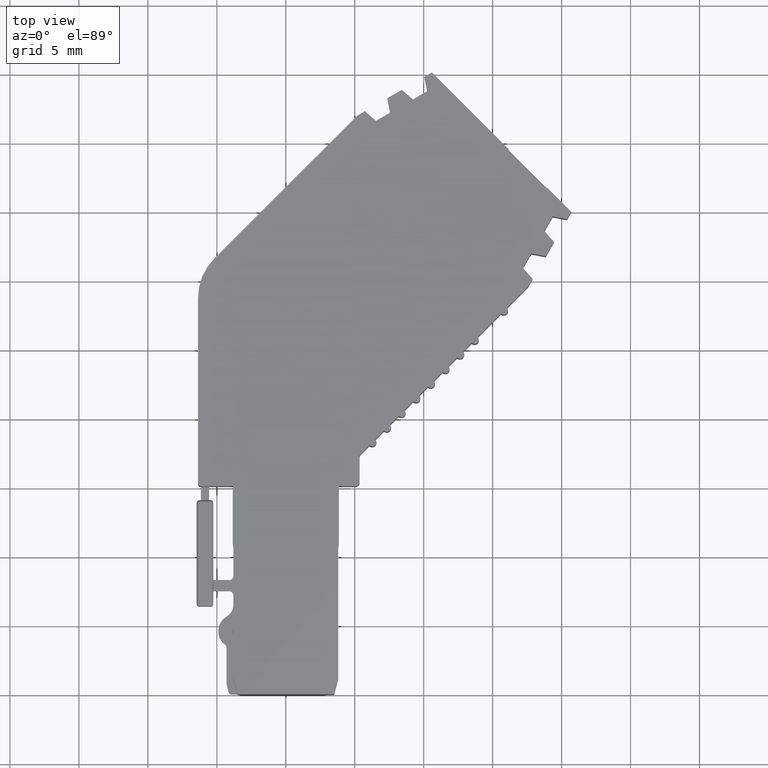
[diagram: clean part render]
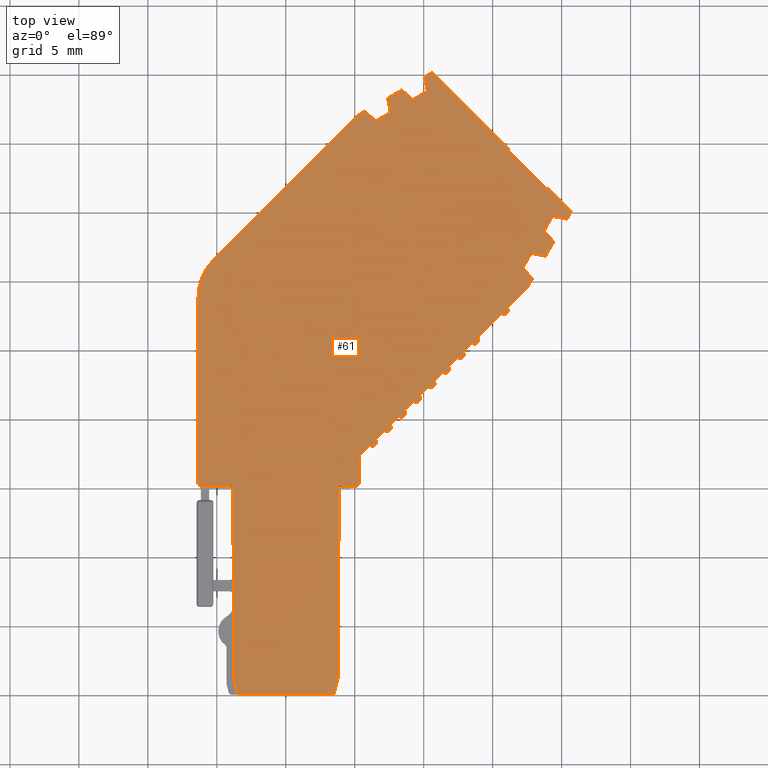
[diagram: same view with one face highlighted and labeled with its STEP entity id]
A machine part, top view. The second image highlights one B-rep face of the part: STEP entity #61.
In plain terms, the highlighted planar face has unit normal (0, 0, 1).
Its self-contained STEP definition (entity closure, byte-faithful):
#4 = DIRECTION ( 'NONE',  ( -0.0000000000000000000, -0.0000000000000000000, -1.000000000000000000 ) ) ;
#15 = DIRECTION ( 'NONE',  ( -0.7071067952874921000, -0.7071067670856026100, 0.0000000000000000000 ) ) ;
#16 = VERTEX_POINT ( 'NONE', #4519 ) ;
#53 = ORIENTED_EDGE ( 'NONE', *, *, #1078, .F. ) ;
#55 = CARTESIAN_POINT ( 'NONE',  ( 3.853561589734705100, 11.15248975837824800, 5.150000000000002100 ) ) ;
#59 = VERTEX_POINT ( 'NONE', #1669 ) ;
#61 = ADVANCED_FACE ( 'NONE', ( #192 ), #3615, .T. ) ;
#74 = ORIENTED_EDGE ( 'NONE', *, *, #6116, .F. ) ;
#87 = VERTEX_POINT ( 'NONE', #222 ) ;
#90 = VERTEX_POINT ( 'NONE', #4092 ) ;
#99 = AXIS2_PLACEMENT_3D ( 'NONE', #1834, #5741, #4697 ) ;
#105 = LINE ( 'NONE', #997, #2638 ) ;
#108 = CARTESIAN_POINT ( 'NONE',  ( 5.653561328662668500, 17.21229058873069200, 5.150000000000000400 ) ) ;
#110 = DIRECTION ( 'NONE',  ( -0.0000000000000000000, -0.0000000000000000000, -1.000000000000000000 ) ) ;
#116 = VERTEX_POINT ( 'NONE', #6034 ) ;
#129 = VERTEX_POINT ( 'NONE', #651 ) ;
#145 = DIRECTION ( 'NONE',  ( -0.0000000000000000000, -0.0000000000000000000, -1.000000000000000000 ) ) ;
#148 = VERTEX_POINT ( 'NONE', #723 ) ;
#160 = EDGE_CURVE ( 'NONE', #4934, #4999, #6223, .T. ) ;
#163 = LINE ( 'NONE', #3064, #2623 ) ;
#165 = CARTESIAN_POINT ( 'NONE',  ( 16.17648277745220000, 39.35806075635384400, 5.150000000000000400 ) ) ;
#170 = VECTOR ( 'NONE', #2029, 1000.000000000000100 ) ;
#182 = VECTOR ( 'NONE', #3036, 1000.000000000000000 ) ;
#192 = FACE_OUTER_BOUND ( 'NONE', #5357, .T. ) ;
#200 = VERTEX_POINT ( 'NONE', #5147 ) ;
#201 = CARTESIAN_POINT ( 'NONE',  ( 8.185460420803988100, 20.16845374958420900, 5.150000000000003000 ) ) ;
#210 = VERTEX_POINT ( 'NONE', #4193 ) ;
#216 = EDGE_CURVE ( 'NONE', #16, #87, #5690, .T. ) ;
#218 = VERTEX_POINT ( 'NONE', #1297 ) ;
#222 = CARTESIAN_POINT ( 'NONE',  ( 8.697592439225905600, 20.38058594053648800, 5.150000000000000400 ) ) ;
#230 = LINE ( 'NONE', #3413, #6117 ) ;
#234 = CARTESIAN_POINT ( 'NONE',  ( 17.58205096522168600, 29.56504429400190800, 5.150000000000000400 ) ) ;
#242 = ORIENTED_EDGE ( 'NONE', *, *, #3958, .F. ) ;
#245 = AXIS2_PLACEMENT_3D ( 'NONE', #3497, #641, #2540 ) ;
#247 = LINE ( 'NONE', #5215, #5287 ) ;
#258 = EDGE_CURVE ( 'NONE', #1457, #2900, #331, .T. ) ;
#266 = DIRECTION ( 'NONE',  ( 1.000000000000000000, 0.0000000000000000000, 0.0000000000000000000 ) ) ;
#267 = CARTESIAN_POINT ( 'NONE',  ( 8.397592380961659900, 20.38058594053648800, 5.150000000000000400 ) ) ;
#269 = DIRECTION ( 'NONE',  ( 0.8674881555730590300, 0.4974578373495106600, -0.0000000000000000000 ) ) ;
#279 = ORIENTED_EDGE ( 'NONE', *, *, #1118, .F. ) ;
#302 = LINE ( 'NONE', #5660, #3668 ) ;
#305 = DIRECTION ( 'NONE',  ( -0.0000000000000000000, 1.000000000000000000, 0.0000000000000000000 ) ) ;
#307 = VECTOR ( 'NONE', #5904, 1000.000000000000100 ) ;
#314 = ORIENTED_EDGE ( 'NONE', *, *, #5834, .T. ) ;
#329 = CARTESIAN_POINT ( 'NONE',  ( 19.35925713628780500, 34.65456863973447800, 5.150000000000000400 ) ) ;
#331 = LINE ( 'NONE', #4259, #5221 ) ;
#336 = VERTEX_POINT ( 'NONE', #2275 ) ;
#355 = ORIENTED_EDGE ( 'NONE', *, *, #1973, .F. ) ;
#384 = CARTESIAN_POINT ( 'NONE',  ( -3.796438410265568800, 1.157132824439919000, 5.150000000000002100 ) ) ;
#401 = CARTESIAN_POINT ( 'NONE',  ( 3.853561589734704600, 15.08098714324118100, 5.150000000000000400 ) ) ;
#413 = CARTESIAN_POINT ( 'NONE',  ( 9.758252526438267800, 21.44124624780430100, 5.150000000000000400 ) ) ;
#415 = DIRECTION ( 'NONE',  ( -0.4999851486963360300, -0.8660339780188204300, -0.0000000000000000000 ) ) ;
#421 = LINE ( 'NONE', #1226, #2282 ) ;
#445 = LINE ( 'NONE', #5971, #4646 ) ;
#448 = DIRECTION ( 'NONE',  ( 0.6560580729057816600, -0.7547104113334810500, -0.0000000000000000000 ) ) ;
#454 = EDGE_CURVE ( 'NONE', #4215, #1457, #2863, .T. ) ;
#471 = ORIENTED_EDGE ( 'NONE', *, *, #2696, .F. ) ;
#472 = DIRECTION ( 'NONE',  ( -0.0000000000000000000, -0.0000000000000000000, -1.000000000000000000 ) ) ;
#479 = VERTEX_POINT ( 'NONE', #2774 ) ;
#495 = CARTESIAN_POINT ( 'NONE',  ( 18.78673171193776900, 33.54242130883196200, 5.150000000000000400 ) ) ;
#498 = CARTESIAN_POINT ( 'NONE',  ( 6.064140141121901800, 18.04713346990212500, 5.150000000000003000 ) ) ;
#500 = ORIENTED_EDGE ( 'NONE', *, *, #4543, .T. ) ;
#515 = DIRECTION ( 'NONE',  ( 1.000000000000000000, 0.0000000000000000000, 0.0000000000000000000 ) ) ;
#531 = LINE ( 'NONE', #4318, #1305 ) ;
#541 = DIRECTION ( 'NONE',  ( -0.7071067811865474600, -0.7071067811865474600, -0.0000000000000000000 ) ) ;
#542 = EDGE_CURVE ( 'NONE', #336, #90, #945, .T. ) ;
#543 = DIRECTION ( 'NONE',  ( -0.0000000000000000000, -0.0000000000000000000, -1.000000000000000000 ) ) ;
#544 = CARTESIAN_POINT ( 'NONE',  ( 19.41143624192685000, 34.62444286839165400, 5.150000000000001200 ) ) ;
#563 = CARTESIAN_POINT ( 'NONE',  ( 3.803561589734704800, 0.0000000000000000000, 5.150000000000000400 ) ) ;
#567 = DIRECTION ( 'NONE',  ( 0.8660257141351492800, 0.4999994624564156900, -0.0000000000000000000 ) ) ;
#571 = ORIENTED_EDGE ( 'NONE', *, *, #4275, .F. ) ;
#579 = VECTOR ( 'NONE', #4636, 1000.000000000000100 ) ;
#592 = LINE ( 'NONE', #4202, #4238 ) ;
#617 = LINE ( 'NONE', #2552, #4349 ) ;
#622 = VECTOR ( 'NONE', #5438, 1000.000000000000000 ) ;
#641 = DIRECTION ( 'NONE',  ( -0.0000000000000000000, -0.0000000000000000000, -1.000000000000000000 ) ) ;
#647 = CARTESIAN_POINT ( 'NONE',  ( 11.79170508725168000, 23.77469841603190300, 5.150000000000001200 ) ) ;
#651 = CARTESIAN_POINT ( 'NONE',  ( 18.73455127930255100, 33.57254840298202900, 5.150000000000000400 ) ) ;
#653 = CARTESIAN_POINT ( 'NONE',  ( 20.70382061922002800, 34.97214514898365700, 5.150000000000000400 ) ) ;
#666 = CARTESIAN_POINT ( 'NONE',  ( 10.25377031456895500, 43.78240909204515700, 5.150000000000002100 ) ) ;
#683 = DIRECTION ( 'NONE',  ( -0.0000000000000000000, -0.0000000000000000000, -1.000000000000000000 ) ) ;
#701 = CARTESIAN_POINT ( 'NONE',  ( 11.57957272324111600, 23.56256649195620400, 5.150000000000001200 ) ) ;
#723 = CARTESIAN_POINT ( 'NONE',  ( 10.28389522464609800, 43.73022887398098400, 5.150000000000000400 ) ) ;
#735 = VERTEX_POINT ( 'NONE', #4011 ) ;
#759 = CARTESIAN_POINT ( 'NONE',  ( 6.488404081572577200, 18.47139770391444800, 5.150000000000000400 ) ) ;
#762 = CARTESIAN_POINT ( 'NONE',  ( 5.734307113917700400, 42.26264773539260500, 5.150000000000001200 ) ) ;
#763 = ORIENTED_EDGE ( 'NONE', *, *, #3286, .F. ) ;
#769 = VERTEX_POINT ( 'NONE', #5291 ) ;
#770 = CARTESIAN_POINT ( 'NONE',  ( 3.803561589734708400, 10.58098714324027700, 5.150000000000002100 ) ) ;
#790 = EDGE_CURVE ( 'NONE', #4860, #6007, #1098, .T. ) ;
#852 = VECTOR ( 'NONE', #2409, 1000.000000000000000 ) ;
#865 = CARTESIAN_POINT ( 'NONE',  ( -3.846438410265568700, 15.08098714324118100, 5.150000000000000400 ) ) ;
#879 = EDGE_CURVE ( 'NONE', #5007, #993, #1721, .T. ) ;
#880 = CARTESIAN_POINT ( 'NONE',  ( 12.85236525903203200, 24.83535858781225500, 5.150000000000001200 ) ) ;
#891 = CARTESIAN_POINT ( 'NONE',  ( 5.441429294306676200, 17.42442262308690100, 5.150000000000002100 ) ) ;
#913 = VECTOR ( 'NONE', #541, 1000.000000000000100 ) ;
#915 = LINE ( 'NONE', #2889, #2831 ) ;
#919 = DIRECTION ( 'NONE',  ( 0.4999779410327700500, -0.8660381391605289600, -0.0000000000000000000 ) ) ;
#927 = DIRECTION ( 'NONE',  ( -0.0000000000000000000, -0.0000000000000000000, -1.000000000000000000 ) ) ;
#938 = VECTOR ( 'NONE', #4932, 1000.000000000000100 ) ;
#939 = ORIENTED_EDGE ( 'NONE', *, *, #964, .F. ) ;
#944 = EDGE_CURVE ( 'NONE', #2536, #2272, #4826, .T. ) ;
#945 = LINE ( 'NONE', #2085, #182 ) ;
#964 = EDGE_CURVE ( 'NONE', #116, #4073, #4981, .T. ) ;
#966 = VERTEX_POINT ( 'NONE', #770 ) ;
#969 = LINE ( 'NONE', #3217, #4701 ) ;
#993 = VERTEX_POINT ( 'NONE', #4765 ) ;
#997 = CARTESIAN_POINT ( 'NONE',  ( 8.417137097009803200, 43.81367678528406600, 5.150000000000003000 ) ) ;
#1004 = LINE ( 'NONE', #55, #170 ) ;
#1007 = VECTOR ( 'NONE', #5063, 1000.000000000000000 ) ;
#1020 = VERTEX_POINT ( 'NONE', #4243 ) ;
#1030 = ORIENTED_EDGE ( 'NONE', *, *, #5863, .F. ) ;
#1046 = EDGE_CURVE ( 'NONE', #4179, #2820, #4132, .T. ) ;
#1051 = EDGE_CURVE ( 'NONE', #4055, #148, #1172, .T. ) ;
#1052 = AXIS2_PLACEMENT_3D ( 'NONE', #4957, #4913, #2967 ) ;
#1056 = ORIENTED_EDGE ( 'NONE', *, *, #5558, .F. ) ;
#1068 = CARTESIAN_POINT ( 'NONE',  ( 17.23696178923660600, 30.85814253354017800, 5.150000000000009200 ) ) ;
#1069 = LINE ( 'NONE', #6254, #1618 ) ;
#1073 = VERTEX_POINT ( 'NONE', #498 ) ;
#1078 = EDGE_CURVE ( 'NONE', #1020, #1073, #5289, .T. ) ;
#1089 = DIRECTION ( 'NONE',  ( 0.8660333243002779100, 0.4999862810131989700, -0.0000000000000000000 ) ) ;
#1091 = CIRCLE ( 'NONE', #5813, 0.3000000000000779800 ) ;
#1098 = LINE ( 'NONE', #1140, #5760 ) ;
#1118 = EDGE_CURVE ( 'NONE', #1315, #1309, #2251, .T. ) ;
#1121 = ORIENTED_EDGE ( 'NONE', *, *, #2437, .F. ) ;
#1134 = CARTESIAN_POINT ( 'NONE',  ( 9.171748760727396600, 43.15770455214821800, 5.150000000000002100 ) ) ;
#1140 = CARTESIAN_POINT ( 'NONE',  ( 5.441429294306676200, 17.42442262308690100, 5.150000000000004800 ) ) ;
#1170 = DIRECTION ( 'NONE',  ( -0.7071067811865474600, 0.7071067811865474600, 0.0000000000000000000 ) ) ;
#1172 = LINE ( 'NONE', #6311, #2703 ) ;
#1173 = EDGE_CURVE ( 'NONE', #3928, #5159, #3972, .T. ) ;
#1177 = AXIS2_PLACEMENT_3D ( 'NONE', #3841, #4, #4292 ) ;
#1194 = AXIS2_PLACEMENT_3D ( 'NONE', #3461, #543, #1986 ) ;
#1205 = ORIENTED_EDGE ( 'NONE', *, *, #216, .F. ) ;
#1206 = CARTESIAN_POINT ( 'NONE',  ( -5.187731406781662900, 31.57092108245258900, 5.150000000000000400 ) ) ;
#1211 = EDGE_CURVE ( 'NONE', #1739, #2207, #4054, .T. ) ;
#1213 = ORIENTED_EDGE ( 'NONE', *, *, #2290, .F. ) ;
#1217 = CARTESIAN_POINT ( 'NONE',  ( -6.159303325978934000, 15.08098714324118100, 5.150000000000000400 ) ) ;
#1226 = CARTESIAN_POINT ( 'NONE',  ( 7.569491533559511400, 42.23263917925216800, 5.150000000000000400 ) ) ;
#1239 = EDGE_CURVE ( 'NONE', #200, #769, #105, .T. ) ;
#1249 = EDGE_CURVE ( 'NONE', #1568, #210, #2773, .T. ) ;
#1254 = DIRECTION ( 'NONE',  ( 1.000000000000000000, 0.0000000000000000000, 0.0000000000000000000 ) ) ;
#1271 = DIRECTION ( 'NONE',  ( 1.000000000000000000, -3.469446278138045300E-014, 0.0000000000000000000 ) ) ;
#1273 = CARTESIAN_POINT ( 'NONE',  ( 9.246120766439412700, 21.22911409521963600, 5.150000000000003000 ) ) ;
#1279 = VERTEX_POINT ( 'NONE', #2055 ) ;
#1297 = CARTESIAN_POINT ( 'NONE',  ( 7.569491533559510500, 42.23263917925216800, 5.150000000000001200 ) ) ;
#1305 = VECTOR ( 'NONE', #5311, 1000.000000000000000 ) ;
#1309 = VERTEX_POINT ( 'NONE', #5507 ) ;
#1315 = VERTEX_POINT ( 'NONE', #5990 ) ;
#1316 = EDGE_CURVE ( 'NONE', #4215, #1568, #2926, .T. ) ;
#1322 = CARTESIAN_POINT ( 'NONE',  ( 17.89167488527298000, 30.10497966774066100, 5.150000000000000400 ) ) ;
#1328 = EDGE_CURVE ( 'NONE', #3284, #129, #2324, .T. ) ;
#1356 = VERTEX_POINT ( 'NONE', #165 ) ;
#1358 = ORIENTED_EDGE ( 'NONE', *, *, #3757, .F. ) ;
#1370 = VERTEX_POINT ( 'NONE', #3137 ) ;
#1372 = DIRECTION ( 'NONE',  ( 1.000000000000000000, 0.0000000000000000000, 0.0000000000000000000 ) ) ;
#1374 = LINE ( 'NONE', #1068, #1610 ) ;
#1392 = ORIENTED_EDGE ( 'NONE', *, *, #4205, .F. ) ;
#1409 = VECTOR ( 'NONE', #5582, 1000.000000000000100 ) ;
#1421 = EDGE_CURVE ( 'NONE', #3206, #735, #2018, .T. ) ;
#1432 = VERTEX_POINT ( 'NONE', #880 ) ;
#1457 = VERTEX_POINT ( 'NONE', #1853 ) ;
#1469 = ORIENTED_EDGE ( 'NONE', *, *, #3704, .T. ) ;
#1471 = CARTESIAN_POINT ( 'NONE',  ( 10.06298601933917100, 44.76391041218734300, 5.150000000000002100 ) ) ;
#1478 = ORIENTED_EDGE ( 'NONE', *, *, #2897, .T. ) ;
#1489 = DIRECTION ( 'NONE',  ( -0.0000000000000000000, -0.0000000000000000000, -1.000000000000000000 ) ) ;
#1515 = LINE ( 'NONE', #3814, #1746 ) ;
#1531 = CARTESIAN_POINT ( 'NONE',  ( 5.441429294306676200, 17.42442262308690100, 5.150000000000002100 ) ) ;
#1548 = CARTESIAN_POINT ( 'NONE',  ( 18.84316634209369200, 31.74937846934562600, 5.150000000000000400 ) ) ;
#1557 = LINE ( 'NONE', #5314, #852 ) ;
#1560 = DIRECTION ( 'NONE',  ( 0.7071069153072666600, 0.7071066470658029500, 0.0000000000000000000 ) ) ;
#1561 = VECTOR ( 'NONE', #1914, 1000.000000000000100 ) ;
#1563 = CARTESIAN_POINT ( 'NONE',  ( 17.86166633904038600, 31.94016408166251600, 5.150000000000000400 ) ) ;
#1568 = VERTEX_POINT ( 'NONE', #2328 ) ;
#1574 = VECTOR ( 'NONE', #415, 1000.000000000000000 ) ;
#1577 = CARTESIAN_POINT ( 'NONE',  ( 0.0000000000000000000, 15.08098714324118100, 5.150000000000000400 ) ) ;
#1578 = EDGE_CURVE ( 'NONE', #5159, #2073, #2098, .T. ) ;
#1579 = DIRECTION ( 'NONE',  ( -0.7071067811865474600, -0.7071067811865474600, -0.0000000000000000000 ) ) ;
#1581 = AXIS2_PLACEMENT_3D ( 'NONE', #2780, #4210, #2307 ) ;
#1598 = ORIENTED_EDGE ( 'NONE', *, *, #1421, .F. ) ;
#1608 = DIRECTION ( 'NONE',  ( -0.0000000000000000000, -0.0000000000000000000, -1.000000000000000000 ) ) ;
#1610 = VECTOR ( 'NONE', #4940, 1000.000000000000000 ) ;
#1616 = CARTESIAN_POINT ( 'NONE',  ( 13.91302513725026200, 25.89601905315356200, 5.150000000000000400 ) ) ;
#1618 = VECTOR ( 'NONE', #2300, 1000.000000000000100 ) ;
#1626 = EDGE_CURVE ( 'NONE', #4142, #3337, #3822, .T. ) ;
#1633 = LINE ( 'NONE', #1577, #622 ) ;
#1657 = ORIENTED_EDGE ( 'NONE', *, *, #4867, .F. ) ;
#1661 = CARTESIAN_POINT ( 'NONE',  ( 14.00089321355764000, 25.68388693492240500, 5.150000000000000400 ) ) ;
#1669 = CARTESIAN_POINT ( 'NONE',  ( 17.58205096522168600, 29.56504429400190800, 5.150000000000001200 ) ) ;
#1692 = ORIENTED_EDGE ( 'NONE', *, *, #6080, .T. ) ;
#1693 = DIRECTION ( 'NONE',  ( 0.7547104113318368100, -0.6560580729076730400, -0.0000000000000000000 ) ) ;
#1706 = LINE ( 'NONE', #5484, #307 ) ;
#1721 = LINE ( 'NONE', #4965, #3830 ) ;
#1739 = VERTEX_POINT ( 'NONE', #3477 ) ;
#1742 = ORIENTED_EDGE ( 'NONE', *, *, #1046, .F. ) ;
#1746 = VECTOR ( 'NONE', #5249, 1000.000000000000000 ) ;
#1750 = EDGE_CURVE ( 'NONE', #3206, #2410, #1633, .T. ) ;
#1834 = CARTESIAN_POINT ( 'NONE',  ( 13.70089327822793200, 25.68388693492240500, 5.150000000000000400 ) ) ;
#1844 = LINE ( 'NONE', #1531, #5593 ) ;
#1853 = CARTESIAN_POINT ( 'NONE',  ( 20.39293756206903700, 34.43365857316209100, 5.149999999999987900 ) ) ;
#1855 = CARTESIAN_POINT ( 'NONE',  ( 5.734307113917700400, 42.26264773539260500, 5.150000000000001200 ) ) ;
#1909 = CARTESIAN_POINT ( 'NONE',  ( 3.168158006345328300, 39.92681016231751600, 5.150000000000000400 ) ) ;
#1911 = ORIENTED_EDGE ( 'NONE', *, *, #3795, .F. ) ;
#1914 = DIRECTION ( 'NONE',  ( -0.4999999999999958400, -0.8660254037844410400, -0.0000000000000000000 ) ) ;
#1934 = VERTEX_POINT ( 'NONE', #1661 ) ;
#1973 = EDGE_CURVE ( 'NONE', #129, #1370, #3150, .T. ) ;
#1977 = CARTESIAN_POINT ( 'NONE',  ( 16.17648317897472400, 39.49948258922896100, 5.150000000000000400 ) ) ;
#1981 = DIRECTION ( 'NONE',  ( 1.000000000000000000, 3.469447699856090000E-014, 0.0000000000000000000 ) ) ;
#1986 = DIRECTION ( 'NONE',  ( 1.000000000000000000, 0.0000000000000000000, 0.0000000000000000000 ) ) ;
#2006 = VECTOR ( 'NONE', #2065, 1000.000000000000100 ) ;
#2013 = VECTOR ( 'NONE', #4354, 1000.000000000000000 ) ;
#2018 = CIRCLE ( 'NONE', #4064, 0.2000000000001505900 ) ;
#2026 = CARTESIAN_POINT ( 'NONE',  ( 5.441429294306676200, 17.42442262308690100, 5.150000000000004800 ) ) ;
#2029 = DIRECTION ( 'NONE',  ( -0.08715574274765465500, -0.9961946980917457700, -0.0000000000000000000 ) ) ;
#2036 = DIRECTION ( 'NONE',  ( 0.8660257345304417400, 0.4999994271306807400, -0.0000000000000000000 ) ) ;
#2054 = CARTESIAN_POINT ( 'NONE',  ( 7.124800404439339400, 19.10779373321956200, 5.150000000000003000 ) ) ;
#2055 = CARTESIAN_POINT ( 'NONE',  ( -3.796438410265568800, 10.58098714324014200, 5.150000000000001200 ) ) ;
#2065 = DIRECTION ( 'NONE',  ( 0.7547102721650658100, -0.6560582330011050000, -0.0000000000000000000 ) ) ;
#2073 = VERTEX_POINT ( 'NONE', #4358 ) ;
#2077 = DIRECTION ( 'NONE',  ( -0.7071067811865474600, -0.7071067811865474600, -0.0000000000000000000 ) ) ;
#2085 = CARTESIAN_POINT ( 'NONE',  ( 0.0000000000000000000, -4.643940871739354800E-014, 5.150000000000000400 ) ) ;
#2095 = VECTOR ( 'NONE', #1693, 1000.000000000000100 ) ;
#2096 = CARTESIAN_POINT ( 'NONE',  ( 6.487469979718992100, 41.60793463935623000, 5.150000000000000400 ) ) ;
#2098 = LINE ( 'NONE', #4833, #1561 ) ;
#2139 = ORIENTED_EDGE ( 'NONE', *, *, #2840, .F. ) ;
#2154 = LINE ( 'NONE', #2192, #4720 ) ;
#2155 = AXIS2_PLACEMENT_3D ( 'NONE', #267, #3678, #1271 ) ;
#2158 = EDGE_CURVE ( 'NONE', #2827, #1432, #617, .T. ) ;
#2162 = CARTESIAN_POINT ( 'NONE',  ( 0.0000000000000000000, 0.0000000000000000000, 5.150000000000000400 ) ) ;
#2167 = VECTOR ( 'NONE', #4289, 1000.000000000000100 ) ;
#2168 = VERTEX_POINT ( 'NONE', #5944 ) ;
#2192 = CARTESIAN_POINT ( 'NONE',  ( 6.517595756780843400, 41.55575552381099400, 5.150000000000000400 ) ) ;
#2195 = VECTOR ( 'NONE', #5225, 1000.000000000000000 ) ;
#2204 = EDGE_CURVE ( 'NONE', #2207, #4907, #1706, .T. ) ;
#2207 = VERTEX_POINT ( 'NONE', #2054 ) ;
#2212 = AXIS2_PLACEMENT_3D ( 'NONE', #3118, #110, #3492 ) ;
#2213 = VECTOR ( 'NONE', #567, 1000.000000000000000 ) ;
#2217 = DIRECTION ( 'NONE',  ( -0.7071067870619394100, -0.7071067753111555100, 0.0000000000000000000 ) ) ;
#2231 = CARTESIAN_POINT ( 'NONE',  ( 8.397592380961659900, 20.38058594053648800, 5.150000000000000400 ) ) ;
#2238 = CIRCLE ( 'NONE', #99, 0.2999999353297082600 ) ;
#2241 = DIRECTION ( 'NONE',  ( -0.0000000000000000000, -0.0000000000000000000, -1.000000000000000000 ) ) ;
#2242 = EDGE_CURVE ( 'NONE', #5401, #2423, #3296, .T. ) ;
#2249 = DIRECTION ( 'NONE',  ( 1.000000000000000000, 0.0000000000000000000, 0.0000000000000000000 ) ) ;
#2251 = CIRCLE ( 'NONE', #4890, 0.3000000452256096400 ) ;
#2253 = DIRECTION ( 'NONE',  ( 1.000000000000000000, 0.0000000000000000000, 0.0000000000000000000 ) ) ;
#2272 = VERTEX_POINT ( 'NONE', #3216 ) ;
#2275 = CARTESIAN_POINT ( 'NONE',  ( -3.496438410264492500, -4.494122328543140500E-014, 5.150000000000002100 ) ) ;
#2282 = VECTOR ( 'NONE', #3897, 1000.000000000000000 ) ;
#2284 = ORIENTED_EDGE ( 'NONE', *, *, #2828, .T. ) ;
#2290 = EDGE_CURVE ( 'NONE', #2168, #5335, #1091, .T. ) ;
#2294 = DIRECTION ( 'NONE',  ( -0.0000000000000000000, -0.0000000000000000000, -1.000000000000000000 ) ) ;
#2300 = DIRECTION ( 'NONE',  ( -0.1908102851246933400, 0.9816269327451407900, -0.0000000000000000000 ) ) ;
#2306 = AXIS2_PLACEMENT_3D ( 'NONE', #2231, #2294, #2253 ) ;
#2307 = DIRECTION ( 'NONE',  ( 1.000000000000000000, 0.0000000000000000000, 0.0000000000000000000 ) ) ;
#2310 = CARTESIAN_POINT ( 'NONE',  ( 5.441429294306595400, 17.42442262308681900, 5.150000000000002100 ) ) ;
#2324 = LINE ( 'NONE', #4049, #1007 ) ;
#2328 = CARTESIAN_POINT ( 'NONE',  ( 19.00491030372090200, 36.67105546448277700, 5.149999999999800500 ) ) ;
#2381 = CARTESIAN_POINT ( 'NONE',  ( 3.803561589734703500, 1.157132824439914400, 5.150000000000002100 ) ) ;
#2388 = ORIENTED_EDGE ( 'NONE', *, *, #2664, .T. ) ;
#2409 = DIRECTION ( 'NONE',  ( 0.2509641976593554000, -0.9679963695661238900, 0.0000000000000000000 ) ) ;
#2410 = VERTEX_POINT ( 'NONE', #865 ) ;
#2413 = CARTESIAN_POINT ( 'NONE',  ( 19.44270394507184100, 32.78780964511258800, 5.150000000000000400 ) ) ;
#2419 = DIRECTION ( 'NONE',  ( -0.7071067811865474600, -0.7071067811865474600, -0.0000000000000000000 ) ) ;
#2423 = VERTEX_POINT ( 'NONE', #4235 ) ;
#2437 = EDGE_CURVE ( 'NONE', #3337, #5622, #3155, .T. ) ;
#2441 = EDGE_CURVE ( 'NONE', #1934, #2827, #5524, .T. ) ;
#2442 = ORIENTED_EDGE ( 'NONE', *, *, #5036, .F. ) ;
#2466 = DIRECTION ( 'NONE',  ( 0.8660254037844382600, 0.5000000000000006700, -0.0000000000000000000 ) ) ;
#2486 = DIRECTION ( 'NONE',  ( 0.8660203205300469600, -0.5000088043515180700, -0.0000000000000000000 ) ) ;
#2513 = ORIENTED_EDGE ( 'NONE', *, *, #4334, .F. ) ;
#2525 = ORIENTED_EDGE ( 'NONE', *, *, #4948, .T. ) ;
#2532 = CARTESIAN_POINT ( 'NONE',  ( 17.80948722349426900, 31.97028985872347900, 5.150000000000000400 ) ) ;
#2536 = VERTEX_POINT ( 'NONE', #6060 ) ;
#2538 = EDGE_CURVE ( 'NONE', #769, #5093, #4667, .T. ) ;
#2540 = DIRECTION ( 'NONE',  ( 1.000000000000000000, -2.312964533671926500E-014, 0.0000000000000000000 ) ) ;
#2552 = CARTESIAN_POINT ( 'NONE',  ( 5.441429294306676200, 17.42442262308690100, 5.150000000000002100 ) ) ;
#2562 = CARTESIAN_POINT ( 'NONE',  ( 6.487469979718993900, 41.60793463935623000, 5.150000000000000400 ) ) ;
#2570 = DIRECTION ( 'NONE',  ( -1.000000000000000000, -0.0000000000000000000, 0.0000000000000000000 ) ) ;
#2587 = ORIENTED_EDGE ( 'NONE', *, *, #6191, .T. ) ;
#2593 = VERTEX_POINT ( 'NONE', #5086 ) ;
#2623 = VECTOR ( 'NONE', #1560, 999.9999999999998900 ) ;
#2632 = DIRECTION ( 'NONE',  ( 1.000000000000000000, 0.0000000000000000000, -0.0000000000000000000 ) ) ;
#2638 = VECTOR ( 'NONE', #2036, 1000.000000000000000 ) ;
#2659 = ORIENTED_EDGE ( 'NONE', *, *, #160, .T. ) ;
#2664 = EDGE_CURVE ( 'NONE', #2168, #4091, #247, .T. ) ;
#2671 = CARTESIAN_POINT ( 'NONE',  ( 9.171748760727400200, 43.15770455214821800, 5.150000000000002100 ) ) ;
#2693 = VECTOR ( 'NONE', #3013, 1000.000000000000000 ) ;
#2696 = EDGE_CURVE ( 'NONE', #4644, #6082, #4594, .T. ) ;
#2703 = VECTOR ( 'NONE', #2466, 1000.000000000000000 ) ;
#2704 = ORIENTED_EDGE ( 'NONE', *, *, #2242, .F. ) ;
#2709 = EDGE_CURVE ( 'NONE', #2536, #1934, #2238, .T. ) ;
#2730 = CARTESIAN_POINT ( 'NONE',  ( 17.86166633904038600, 31.94016408166251600, 5.150000000000000400 ) ) ;
#2738 = LINE ( 'NONE', #234, #4401 ) ;
#2739 = DIRECTION ( 'NONE',  ( 0.5000018753401056500, -0.8660243210536164900, -0.0000000000000000000 ) ) ;
#2767 = LINE ( 'NONE', #1909, #5203 ) ;
#2771 = ORIENTED_EDGE ( 'NONE', *, *, #3133, .F. ) ;
#2773 = LINE ( 'NONE', #5946, #4819 ) ;
#2774 = CARTESIAN_POINT ( 'NONE',  ( 5.194371740179835100, 41.95302381533953500, 5.150000000000001200 ) ) ;
#2780 = CARTESIAN_POINT ( 'NONE',  ( -2.359304324338339100, 28.74249391540353600, 5.150000000000000400 ) ) ;
#2786 = CARTESIAN_POINT ( 'NONE',  ( 9.458252591108717400, 21.44124624780430100, 5.150000000000000400 ) ) ;
#2820 = VERTEX_POINT ( 'NONE', #4836 ) ;
#2827 = VERTEX_POINT ( 'NONE', #4862 ) ;
#2828 = EDGE_CURVE ( 'NONE', #1279, #6112, #4120, .T. ) ;
#2829 = AXIS2_PLACEMENT_3D ( 'NONE', #3598, #683, #3661 ) ;
#2831 = VECTOR ( 'NONE', #919, 1000.000000000000100 ) ;
#2839 = ORIENTED_EDGE ( 'NONE', *, *, #4421, .F. ) ;
#2840 = EDGE_CURVE ( 'NONE', #5105, #5007, #5123, .T. ) ;
#2851 = CARTESIAN_POINT ( 'NONE',  ( 18.86348814874224200, 36.67105506296098100, 5.150000000000000400 ) ) ;
#2863 = LINE ( 'NONE', #5268, #1574 ) ;
#2886 = EDGE_CURVE ( 'NONE', #6086, #966, #1004, .T. ) ;
#2888 = ORIENTED_EDGE ( 'NONE', *, *, #1750, .T. ) ;
#2889 = CARTESIAN_POINT ( 'NONE',  ( 9.201873744110354600, 43.10552348092469500, 5.150000000000000400 ) ) ;
#2890 = ORIENTED_EDGE ( 'NONE', *, *, #6062, .F. ) ;
#2897 = EDGE_CURVE ( 'NONE', #6112, #336, #1557, .T. ) ;
#2900 = VERTEX_POINT ( 'NONE', #544 ) ;
#2907 = CARTESIAN_POINT ( 'NONE',  ( 11.87957287836242400, 23.56256649195620400, 5.150000000000001200 ) ) ;
#2914 = AXIS2_PLACEMENT_3D ( 'NONE', #108, #145, #4004 ) ;
#2926 = LINE ( 'NONE', #653, #5054 ) ;
#2948 = EDGE_CURVE ( 'NONE', #3588, #4934, #2767, .T. ) ;
#2955 = ORIENTED_EDGE ( 'NONE', *, *, #5226, .F. ) ;
#2958 = CARTESIAN_POINT ( 'NONE',  ( 9.458252591108717400, 21.44124624780430100, 5.150000000000000400 ) ) ;
#2962 = VERTEX_POINT ( 'NONE', #1977 ) ;
#2966 = DIRECTION ( 'NONE',  ( -0.0000000000000000000, 1.000000000000000000, 0.0000000000000000000 ) ) ;
#2967 = DIRECTION ( 'NONE',  ( 1.000000000000000000, 0.0000000000000000000, 0.0000000000000000000 ) ) ;
#2974 = VECTOR ( 'NONE', #2217, 1000.000000000000100 ) ;
#2982 = CARTESIAN_POINT ( 'NONE',  ( 7.599617310622031500, 42.18046006370693100, 5.150000000000000400 ) ) ;
#3013 = DIRECTION ( 'NONE',  ( -0.4999994271304298900, -0.8660257345305865100, -0.0000000000000000000 ) ) ;
#3024 = EDGE_CURVE ( 'NONE', #5002, #5823, #3960, .T. ) ;
#3028 = DIRECTION ( 'NONE',  ( 1.000000000000000000, 0.0000000000000000000, 0.0000000000000000000 ) ) ;
#3036 = DIRECTION ( 'NONE',  ( 1.000000000000000000, 0.0000000000000000000, -0.0000000000000000000 ) ) ;
#3064 = CARTESIAN_POINT ( 'NONE',  ( 16.03434548080970100, 28.01733939671299800, 5.150000000000000400 ) ) ;
#3076 = CARTESIAN_POINT ( 'NONE',  ( 19.44270394507184100, 32.78780964511258800, 5.150000000000000400 ) ) ;
#3086 = EDGE_CURVE ( 'NONE', #2593, #59, #163, .T. ) ;
#3107 = LINE ( 'NONE', #2851, #4540 ) ;
#3118 = CARTESIAN_POINT ( 'NONE',  ( 12.64023306808065300, 24.62322662765414800, 5.150000000000001200 ) ) ;
#3126 = CIRCLE ( 'NONE', #245, 0.3000000130953779900 ) ;
#3128 = CARTESIAN_POINT ( 'NONE',  ( 9.201873744110352900, 43.10552348092469500, 5.150000000000000400 ) ) ;
#3130 = ORIENTED_EDGE ( 'NONE', *, *, #790, .F. ) ;
#3131 = ORIENTED_EDGE ( 'NONE', *, *, #5470, .F. ) ;
#3133 = EDGE_CURVE ( 'NONE', #1309, #4142, #1844, .T. ) ;
#3135 = LINE ( 'NONE', #563, #4721 ) ;
#3137 = CARTESIAN_POINT ( 'NONE',  ( 18.78673171193776500, 33.54242130883196200, 5.150000000000000400 ) ) ;
#3150 = LINE ( 'NONE', #495, #5663 ) ;
#3155 = CIRCLE ( 'NONE', #4903, 0.2999999353295503800 ) ;
#3170 = CARTESIAN_POINT ( 'NONE',  ( 5.194371740179835100, 41.95302381533953500, 5.150000000000000400 ) ) ;
#3202 = VECTOR ( 'NONE', #6269, 1000.000000000000000 ) ;
#3206 = VERTEX_POINT ( 'NONE', #1217 ) ;
#3208 = CIRCLE ( 'NONE', #4061, 0.2999999483681397000 ) ;
#3216 = CARTESIAN_POINT ( 'NONE',  ( 15.61008133950465300, 27.59307496184630500, 5.150000000000000400 ) ) ;
#3217 = CARTESIAN_POINT ( 'NONE',  ( 16.17648317897472400, 39.49948258922896100, 5.150000000000000400 ) ) ;
#3223 = CARTESIAN_POINT ( 'NONE',  ( 5.441429294306676200, 17.42442262308690100, 5.150000000000002100 ) ) ;
#3265 = ORIENTED_EDGE ( 'NONE', *, *, #2886, .F. ) ;
#3284 = VERTEX_POINT ( 'NONE', #329 ) ;
#3286 = EDGE_CURVE ( 'NONE', #5335, #6188, #302, .T. ) ;
#3287 = CIRCLE ( 'NONE', #3505, 0.3000000582640896500 ) ;
#3295 = DIRECTION ( 'NONE',  ( -0.7071067302611540000, 0.7071068321119373700, 0.0000000000000000000 ) ) ;
#3296 = LINE ( 'NONE', #1548, #2693 ) ;
#3323 = CARTESIAN_POINT ( 'NONE',  ( 17.23696178923660600, 30.85814253354017800, 5.150000000000003900 ) ) ;
#3334 = ORIENTED_EDGE ( 'NONE', *, *, #1239, .F. ) ;
#3337 = VERTEX_POINT ( 'NONE', #413 ) ;
#3345 = DIRECTION ( 'NONE',  ( -0.0000000000000000000, -0.0000000000000000000, -1.000000000000000000 ) ) ;
#3413 = CARTESIAN_POINT ( 'NONE',  ( 5.441429294306676200, 17.42442262308690100, 5.150000000000004800 ) ) ;
#3424 = ORIENTED_EDGE ( 'NONE', *, *, #542, .T. ) ;
#3441 = DIRECTION ( 'NONE',  ( -0.0000000000000000000, -0.0000000000000000000, -1.000000000000000000 ) ) ;
#3461 = CARTESIAN_POINT ( 'NONE',  ( 13.70089327822793200, 25.68388693492240500, 5.150000000000000400 ) ) ;
#3471 = DIRECTION ( 'NONE',  ( -0.7071067811865474600, -0.7071067811865474600, -0.0000000000000000000 ) ) ;
#3475 = VERTEX_POINT ( 'NONE', #2381 ) ;
#3477 = CARTESIAN_POINT ( 'NONE',  ( 7.636932283818159000, 19.31992579790231400, 5.150000000000000400 ) ) ;
#3478 = ORIENTED_EDGE ( 'NONE', *, *, #5005, .F. ) ;
#3492 = DIRECTION ( 'NONE',  ( 1.000000000000000000, 3.469446278139850800E-014, 0.0000000000000000000 ) ) ;
#3497 = CARTESIAN_POINT ( 'NONE',  ( 6.276272166461593500, 18.25926553179402100, 5.150000000000000400 ) ) ;
#3505 = AXIS2_PLACEMENT_3D ( 'NONE', #4888, #3441, #4947 ) ;
#3506 = LINE ( 'NONE', #2026, #913 ) ;
#3510 = ORIENTED_EDGE ( 'NONE', *, *, #1626, .F. ) ;
#3514 = ORIENTED_EDGE ( 'NONE', *, *, #5426, .T. ) ;
#3527 = CARTESIAN_POINT ( 'NONE',  ( -6.359304204424675300, 0.0000000000000000000, 5.150000000000000400 ) ) ;
#3550 = CARTESIAN_POINT ( 'NONE',  ( 15.82221341036055200, 27.80520717907652900, 5.150000000000000400 ) ) ;
#3588 = VERTEX_POINT ( 'NONE', #5355 ) ;
#3598 = CARTESIAN_POINT ( 'NONE',  ( 10.51891263662013600, 22.50190639043669800, 5.150000000000001200 ) ) ;
#3604 = DIRECTION ( 'NONE',  ( 0.7071067811865934200, 0.7071067811865016100, 0.0000000000000000000 ) ) ;
#3615 = PLANE ( 'NONE',  #5942 ) ;
#3635 = ORIENTED_EDGE ( 'NONE', *, *, #5193, .F. ) ;
#3638 = DIRECTION ( 'NONE',  ( 0.0000000000000000000, 0.0000000000000000000, 1.000000000000000000 ) ) ;
#3646 = DIRECTION ( 'NONE',  ( -0.4974578373467471400, -0.8674881555746436500, -0.0000000000000000000 ) ) ;
#3648 = ORIENTED_EDGE ( 'NONE', *, *, #3803, .F. ) ;
#3651 = CIRCLE ( 'NONE', #2914, 0.3000000000001933300 ) ;
#3661 = DIRECTION ( 'NONE',  ( 1.000000000000000000, -3.469446428927514800E-014, 0.0000000000000000000 ) ) ;
#3668 = VECTOR ( 'NONE', #5179, 1000.000000000000000 ) ;
#3678 = DIRECTION ( 'NONE',  ( -0.0000000000000000000, -0.0000000000000000000, -1.000000000000000000 ) ) ;
#3681 = DIRECTION ( 'NONE',  ( -0.0000000000000000000, -0.0000000000000000000, -1.000000000000000000 ) ) ;
#3696 = CARTESIAN_POINT ( 'NONE',  ( 11.36744065238471900, 23.35043427472614000, 5.150000000000000400 ) ) ;
#3704 = EDGE_CURVE ( 'NONE', #2410, #4702, #445, .T. ) ;
#3757 = EDGE_CURVE ( 'NONE', #1432, #4255, #5802, .T. ) ;
#3771 = ORIENTED_EDGE ( 'NONE', *, *, #2158, .F. ) ;
#3784 = CARTESIAN_POINT ( 'NONE',  ( 15.82221341036055200, 27.80520717907652900, 5.150000000000000400 ) ) ;
#3795 = EDGE_CURVE ( 'NONE', #1370, #5401, #3806, .T. ) ;
#3801 = LINE ( 'NONE', #5404, #3202 ) ;
#3803 = EDGE_CURVE ( 'NONE', #6007, #1739, #3208, .T. ) ;
#3806 = LINE ( 'NONE', #2413, #5431 ) ;
#3814 = CARTESIAN_POINT ( 'NONE',  ( 10.25377031456895500, 43.78240909204515700, 5.150000000000002100 ) ) ;
#3822 = CIRCLE ( 'NONE', #4764, 0.2999999353295503800 ) ;
#3830 = VECTOR ( 'NONE', #1089, 1000.000000000000100 ) ;
#3841 = CARTESIAN_POINT ( 'NONE',  ( 6.276272166461593500, 18.25926553179402100, 5.150000000000000400 ) ) ;
#3853 = CARTESIAN_POINT ( 'NONE',  ( 7.336932335450018900, 19.31992579790231400, 5.150000000000000400 ) ) ;
#3885 = EDGE_CURVE ( 'NONE', #1073, #5629, #3506, .T. ) ;
#3897 = DIRECTION ( 'NONE',  ( -0.5000018753484299900, 0.8660243210488104400, -0.0000000000000000000 ) ) ;
#3908 = ORIENTED_EDGE ( 'NONE', *, *, #1316, .T. ) ;
#3912 = VERTEX_POINT ( 'NONE', #2982 ) ;
#3928 = VERTEX_POINT ( 'NONE', #1563 ) ;
#3933 = CIRCLE ( 'NONE', #2829, 0.3000000452256096400 ) ;
#3958 = EDGE_CURVE ( 'NONE', #4255, #116, #3287, .T. ) ;
#3959 = ORIENTED_EDGE ( 'NONE', *, *, #4640, .F. ) ;
#3960 = LINE ( 'NONE', #2562, #2006 ) ;
#3969 = VECTOR ( 'NONE', #6203, 1000.000000000000100 ) ;
#3971 = CARTESIAN_POINT ( 'NONE',  ( 10.06298601933917100, 44.76391041218734300, 5.150000000000002100 ) ) ;
#3972 = LINE ( 'NONE', #2532, #938 ) ;
#4004 = DIRECTION ( 'NONE',  ( 1.000000000000000000, 0.0000000000000000000, 0.0000000000000000000 ) ) ;
#4011 = CARTESIAN_POINT ( 'NONE',  ( -6.359303851774448000, 15.28098713710995700, 5.150000000000000400 ) ) ;
#4018 = CIRCLE ( 'NONE', #6256, 0.3000001551213080700 ) ;
#4049 = CARTESIAN_POINT ( 'NONE',  ( 19.35925713628780500, 34.65456863973447800, 5.150000000000000400 ) ) ;
#4054 = CIRCLE ( 'NONE', #1052, 0.2999999483681397000 ) ;
#4055 = VERTEX_POINT ( 'NONE', #3128 ) ;
#4061 = AXIS2_PLACEMENT_3D ( 'NONE', #3853, #927, #6325 ) ;
#4064 = AXIS2_PLACEMENT_3D ( 'NONE', #5128, #3681, #1254 ) ;
#4073 = VERTEX_POINT ( 'NONE', #647 ) ;
#4076 = ORIENTED_EDGE ( 'NONE', *, *, #1578, .F. ) ;
#4090 = DIRECTION ( 'NONE',  ( -0.0000000000000000000, -0.0000000000000000000, -1.000000000000000000 ) ) ;
#4091 = VERTEX_POINT ( 'NONE', #4589 ) ;
#4092 = CARTESIAN_POINT ( 'NONE',  ( 3.503561589733627200, -4.666760394058775600E-014, 5.150000000000002100 ) ) ;
#4120 = LINE ( 'NONE', #5794, #2013 ) ;
#4132 = LINE ( 'NONE', #891, #4284 ) ;
#4133 = ORIENTED_EDGE ( 'NONE', *, *, #2948, .T. ) ;
#4142 = VERTEX_POINT ( 'NONE', #4189 ) ;
#4179 = VERTEX_POINT ( 'NONE', #3696 ) ;
#4189 = CARTESIAN_POINT ( 'NONE',  ( 9.670384743693297500, 21.65337807247352200, 5.150000000000002100 ) ) ;
#4193 = CARTESIAN_POINT ( 'NONE',  ( 18.86348808182195200, 36.67105523026172900, 5.150000000000001200 ) ) ;
#4198 = AXIS2_PLACEMENT_3D ( 'NONE', #701, #2241, #4282 ) ;
#4202 = CARTESIAN_POINT ( 'NONE',  ( 3.803561589734704800, 1.157132824439919500, 5.150000000000003000 ) ) ;
#4205 = EDGE_CURVE ( 'NONE', #5823, #4510, #2154, .T. ) ;
#4210 = DIRECTION ( 'NONE',  ( 0.0000000000000000000, 0.0000000000000000000, 1.000000000000000000 ) ) ;
#4215 = VERTEX_POINT ( 'NONE', #4222 ) ;
#4222 = CARTESIAN_POINT ( 'NONE',  ( 20.70382061922002800, 34.97214514898365700, 5.149999999999925700 ) ) ;
#4235 = CARTESIAN_POINT ( 'NONE',  ( 18.84316634209369200, 31.74937846934562600, 5.150000000000000400 ) ) ;
#4236 = CARTESIAN_POINT ( 'NONE',  ( 3.853561589734709100, 11.15248975837830000, 5.150000000000001200 ) ) ;
#4238 = VECTOR ( 'NONE', #6147, 1000.000000000000000 ) ;
#4242 = EDGE_CURVE ( 'NONE', #218, #200, #1069, .T. ) ;
#4243 = CARTESIAN_POINT ( 'NONE',  ( 6.576272179556972300, 18.25926553179402100, 5.150000000000000400 ) ) ;
#4254 = CARTESIAN_POINT ( 'NONE',  ( 16.17648277745220400, 0.0000000000000000000, 5.150000000000000400 ) ) ;
#4255 = VERTEX_POINT ( 'NONE', #5765 ) ;
#4259 = CARTESIAN_POINT ( 'NONE',  ( 19.41143624192685000, 34.62444286839165400, 5.150000000000002100 ) ) ;
#4268 = DIRECTION ( 'NONE',  ( -0.0000000000000000000, -0.0000000000000000000, -1.000000000000000000 ) ) ;
#4275 = EDGE_CURVE ( 'NONE', #2900, #3284, #6261, .T. ) ;
#4282 = DIRECTION ( 'NONE',  ( 1.000000000000000000, 0.0000000000000000000, 0.0000000000000000000 ) ) ;
#4284 = VECTOR ( 'NONE', #2419, 1000.000000000000100 ) ;
#4289 = DIRECTION ( 'NONE',  ( -0.1908087690975458500, 0.9816272274318186300, -0.0000000000000000000 ) ) ;
#4292 = DIRECTION ( 'NONE',  ( 1.000000000000000000, 0.0000000000000000000, 0.0000000000000000000 ) ) ;
#4308 = CIRCLE ( 'NONE', #4198, 0.3000001551213080700 ) ;
#4311 = DIRECTION ( 'NONE',  ( 1.000000000000000000, 0.0000000000000000000, 0.0000000000000000000 ) ) ;
#4318 = CARTESIAN_POINT ( 'NONE',  ( -3.846438410265568700, 11.15248975837824800, 5.150000000000002100 ) ) ;
#4334 = EDGE_CURVE ( 'NONE', #1279, #4702, #531, .T. ) ;
#4349 = VECTOR ( 'NONE', #2077, 1000.000000000000100 ) ;
#4354 = DIRECTION ( 'NONE',  ( 0.0000000000000000000, -1.000000000000000000, -0.0000000000000000000 ) ) ;
#4357 = VERTEX_POINT ( 'NONE', #2907 ) ;
#4358 = CARTESIAN_POINT ( 'NONE',  ( 17.18478171928372000, 30.88826818566285900, 5.150000000000015500 ) ) ;
#4398 = EDGE_CURVE ( 'NONE', #5093, #4055, #915, .T. ) ;
#4401 = VECTOR ( 'NONE', #3646, 1000.000000000000000 ) ;
#4419 = CARTESIAN_POINT ( 'NONE',  ( -3.846438410265570000, 11.15248975837822200, 5.150000000000001200 ) ) ;
#4421 = EDGE_CURVE ( 'NONE', #5622, #16, #230, .T. ) ;
#4459 = ORIENTED_EDGE ( 'NONE', *, *, #944, .T. ) ;
#4467 = LINE ( 'NONE', #3527, #5857 ) ;
#4473 = LINE ( 'NONE', #762, #4933 ) ;
#4481 = ORIENTED_EDGE ( 'NONE', *, *, #879, .F. ) ;
#4510 = VERTEX_POINT ( 'NONE', #5889 ) ;
#4519 = CARTESIAN_POINT ( 'NONE',  ( 8.609724425132983000, 20.59271804747507400, 5.150000000000000400 ) ) ;
#4540 = VECTOR ( 'NONE', #3295, 1000.000000000000000 ) ;
#4543 = EDGE_CURVE ( 'NONE', #6086, #6188, #3801, .T. ) ;
#4548 = CARTESIAN_POINT ( 'NONE',  ( 7.599617310622029700, 42.18046006370693100, 5.150000000000000400 ) ) ;
#4589 = CARTESIAN_POINT ( 'NONE',  ( 5.353561328662475000, 17.21229058873080200, 5.150000000000000400 ) ) ;
#4594 = LINE ( 'NONE', #1322, #3969 ) ;
#4620 = ORIENTED_EDGE ( 'NONE', *, *, #258, .F. ) ;
#4636 = DIRECTION ( 'NONE',  ( -0.9816269327455139400, 0.1908102851227735400, -0.0000000000000000000 ) ) ;
#4640 = EDGE_CURVE ( 'NONE', #6295, #2272, #4875, .T. ) ;
#4644 = VERTEX_POINT ( 'NONE', #3323 ) ;
#4645 = ORIENTED_EDGE ( 'NONE', *, *, #5461, .F. ) ;
#4646 = VECTOR ( 'NONE', #5001, 1000.000000000000000 ) ;
#4660 = AXIS2_PLACEMENT_3D ( 'NONE', #3550, #1608, #3028 ) ;
#4667 = LINE ( 'NONE', #2671, #2095 ) ;
#4677 = VECTOR ( 'NONE', #3604, 1000.000000000000100 ) ;
#4681 = CARTESIAN_POINT ( 'NONE',  ( 17.89167488527298000, 30.10497966774066100, 5.150000000000000400 ) ) ;
#4697 = DIRECTION ( 'NONE',  ( 1.000000000000000000, 0.0000000000000000000, 0.0000000000000000000 ) ) ;
#4701 = VECTOR ( 'NONE', #6161, 1000.000000000000000 ) ;
#4702 = VERTEX_POINT ( 'NONE', #4419 ) ;
#4720 = VECTOR ( 'NONE', #2739, 1000.000000000000000 ) ;
#4721 = VECTOR ( 'NONE', #2966, 1000.000000000000000 ) ;
#4735 = ORIENTED_EDGE ( 'NONE', *, *, #6178, .T. ) ;
#4748 = EDGE_CURVE ( 'NONE', #3475, #966, #3135, .T. ) ;
#4753 = DIRECTION ( 'NONE',  ( -0.9816272274318602600, 0.1908087690973319100, -0.0000000000000000000 ) ) ;
#4764 = AXIS2_PLACEMENT_3D ( 'NONE', #2958, #1489, #1981 ) ;
#4765 = CARTESIAN_POINT ( 'NONE',  ( 10.60128161725279800, 45.07468415095088000, 5.150000000000000400 ) ) ;
#4790 = LINE ( 'NONE', #4548, #2213 ) ;
#4819 = VECTOR ( 'NONE', #2570, 1000.000000000000000 ) ;
#4826 = LINE ( 'NONE', #1616, #4677 ) ;
#4833 = CARTESIAN_POINT ( 'NONE',  ( -0.4864261743824188100, 0.2808382827205662100, 5.150000000000029700 ) ) ;
#4836 = CARTESIAN_POINT ( 'NONE',  ( 10.73104491547344200, 22.71403824425366500, 5.150000000000002100 ) ) ;
#4848 = ORIENTED_EDGE ( 'NONE', *, *, #4242, .F. ) ;
#4860 = VERTEX_POINT ( 'NONE', #201 ) ;
#4862 = CARTESIAN_POINT ( 'NONE',  ( 13.48876130677731700, 25.47175492911880200, 5.150000000000000400 ) ) ;
#4867 = EDGE_CURVE ( 'NONE', #4073, #4357, #4018, .T. ) ;
#4870 = ORIENTED_EDGE ( 'NONE', *, *, #2441, .F. ) ;
#4875 = CIRCLE ( 'NONE', #5578, 0.3000001551210739200 ) ;
#4888 = CARTESIAN_POINT ( 'NONE',  ( 12.64023306808065300, 24.62322662765414800, 5.150000000000001200 ) ) ;
#4890 = AXIS2_PLACEMENT_3D ( 'NONE', #6271, #3345, #4311 ) ;
#4903 = AXIS2_PLACEMENT_3D ( 'NONE', #2786, #472, #515 ) ;
#4907 = VERTEX_POINT ( 'NONE', #759 ) ;
#4913 = DIRECTION ( 'NONE',  ( -0.0000000000000000000, -0.0000000000000000000, -1.000000000000000000 ) ) ;
#4918 = CARTESIAN_POINT ( 'NONE',  ( 16.12221356548162600, 27.80520717907652900, 5.150000000000000400 ) ) ;
#4932 = DIRECTION ( 'NONE',  ( -0.8660243210636867600, 0.5000018753226633800, -0.0000000000000000000 ) ) ;
#4933 = VECTOR ( 'NONE', #269, 1000.000000000000000 ) ;
#4934 = VERTEX_POINT ( 'NONE', #1206 ) ;
#4940 = DIRECTION ( 'NONE',  ( 0.8660291790031664500, -0.4999934610723439400, -0.0000000000000000000 ) ) ;
#4947 = DIRECTION ( 'NONE',  ( 1.000000000000000000, 0.0000000000000000000, 0.0000000000000000000 ) ) ;
#4948 = EDGE_CURVE ( 'NONE', #479, #3588, #5577, .T. ) ;
#4957 = CARTESIAN_POINT ( 'NONE',  ( 7.336932335450018900, 19.31992579790231400, 5.150000000000000400 ) ) ;
#4965 = CARTESIAN_POINT ( 'NONE',  ( 10.60128161725280000, 45.07468415095088000, 5.150000000000000400 ) ) ;
#4981 = LINE ( 'NONE', #3223, #1409 ) ;
#4986 = ORIENTED_EDGE ( 'NONE', *, *, #2538, .F. ) ;
#4999 = VERTEX_POINT ( 'NONE', #5233 ) ;
#5001 = DIRECTION ( 'NONE',  ( 0.0000000000000000000, -1.000000000000000000, -0.0000000000000000000 ) ) ;
#5002 = VERTEX_POINT ( 'NONE', #1855 ) ;
#5005 = EDGE_CURVE ( 'NONE', #4907, #1020, #3126, .T. ) ;
#5007 = VERTEX_POINT ( 'NONE', #3971 ) ;
#5034 = ORIENTED_EDGE ( 'NONE', *, *, #1051, .F. ) ;
#5036 = EDGE_CURVE ( 'NONE', #2073, #4644, #1374, .T. ) ;
#5054 = VECTOR ( 'NONE', #1170, 1000.000000000000100 ) ;
#5061 = CARTESIAN_POINT ( 'NONE',  ( 11.57957272324111600, 23.56256649195620400, 5.150000000000001200 ) ) ;
#5063 = DIRECTION ( 'NONE',  ( -0.5000007095513372400, -0.8660249941243954900, -0.0000000000000000000 ) ) ;
#5069 = ORIENTED_EDGE ( 'NONE', *, *, #5888, .F. ) ;
#5086 = CARTESIAN_POINT ( 'NONE',  ( 16.03434562759062500, 28.01733924993238400, 5.150000000000000400 ) ) ;
#5091 = ORIENTED_EDGE ( 'NONE', *, *, #1249, .T. ) ;
#5093 = VERTEX_POINT ( 'NONE', #1134 ) ;
#5105 = VERTEX_POINT ( 'NONE', #666 ) ;
#5110 = ORIENTED_EDGE ( 'NONE', *, *, #5544, .F. ) ;
#5123 = LINE ( 'NONE', #1471, #2167 ) ;
#5128 = CARTESIAN_POINT ( 'NONE',  ( -6.159303499124098900, 15.28098714324013200, 5.150000000000000400 ) ) ;
#5147 = CARTESIAN_POINT ( 'NONE',  ( 7.378705921240842800, 43.21413918230435800, 5.150000000000003000 ) ) ;
#5151 = CARTESIAN_POINT ( 'NONE',  ( 5.053561328662396200, 15.38098714324126000, 5.150000000000000400 ) ) ;
#5155 = ORIENTED_EDGE ( 'NONE', *, *, #454, .F. ) ;
#5159 = VERTEX_POINT ( 'NONE', #6043 ) ;
#5162 = ORIENTED_EDGE ( 'NONE', *, *, #4398, .F. ) ;
#5179 = DIRECTION ( 'NONE',  ( -1.000000000000000000, -0.0000000000000000000, -0.0000000000000000000 ) ) ;
#5193 = EDGE_CURVE ( 'NONE', #6082, #59, #2738, .T. ) ;
#5203 = VECTOR ( 'NONE', #15, 1000.000000000000100 ) ;
#5207 = DIRECTION ( 'NONE',  ( -0.8660243210511970900, 0.5000018753442963000, -0.0000000000000000000 ) ) ;
#5214 = DIRECTION ( 'NONE',  ( -0.0000000000000000000, -0.0000000000000000000, -1.000000000000000000 ) ) ;
#5215 = CARTESIAN_POINT ( 'NONE',  ( 5.353561328662474100, 0.0000000000000000000, 5.150000000000000400 ) ) ;
#5221 = VECTOR ( 'NONE', #4753, 1000.000000000000100 ) ;
#5225 = DIRECTION ( 'NONE',  ( -0.0000000000000000000, 1.000000000000000000, 0.0000000000000000000 ) ) ;
#5226 = EDGE_CURVE ( 'NONE', #87, #4860, #5570, .T. ) ;
#5233 = CARTESIAN_POINT ( 'NONE',  ( -6.359304324338328500, 28.74249367019647700, 5.150000000000000400 ) ) ;
#5234 = ORIENTED_EDGE ( 'NONE', *, *, #2204, .F. ) ;
#5239 = EDGE_CURVE ( 'NONE', #3475, #90, #592, .T. ) ;
#5249 = DIRECTION ( 'NONE',  ( -0.4999831597345778500, 0.8660351262979046900, -0.0000000000000000000 ) ) ;
#5266 = VECTOR ( 'NONE', #5207, 999.9999999999998900 ) ;
#5268 = CARTESIAN_POINT ( 'NONE',  ( 20.39293756206903700, 34.43365857316209100, 5.149999999999949700 ) ) ;
#5287 = VECTOR ( 'NONE', #305, 1000.000000000000000 ) ;
#5289 = CIRCLE ( 'NONE', #1177, 0.3000000130953779900 ) ;
#5291 = CARTESIAN_POINT ( 'NONE',  ( 8.417137097009803200, 43.81367678528406600, 5.150000000000003900 ) ) ;
#5311 = DIRECTION ( 'NONE',  ( -0.08715574274765167100, 0.9961946980917461000, -0.0000000000000000000 ) ) ;
#5314 = CARTESIAN_POINT ( 'NONE',  ( -3.796438410265568800, 1.157132824439918200, 5.150000000000000400 ) ) ;
#5335 = VERTEX_POINT ( 'NONE', #5381 ) ;
#5355 = CARTESIAN_POINT ( 'NONE',  ( 3.168158006345328300, 39.92681016231751600, 5.150000000000000400 ) ) ;
#5357 = EDGE_LOOP ( 'NONE', ( #571, #4620, #5155, #3908, #5091, #4735, #2587, #1692, #4481, #2139, #74, #5034, #5162, #4986, #3334, #4848, #5069, #3131, #1392, #5600, #1056, #2525, #4133, #2659, #314, #1598, #2888, #1469, #2513, #2284, #1478, #3424, #5435, #6145, #3265, #500, #763, #1213, #2388, #3514, #6121, #53, #3478, #5234, #6074, #3648, #3130, #2955, #1205, #2839, #1121, #3510, #2771, #279, #5110, #1742, #1030, #1657, #939, #242, #1358, #3771, #4870, #5935, #4459, #3959, #4645, #6310, #3635, #471, #2442, #4076, #5594, #2890, #2704, #1911, #355, #5402 ) ) ;
#5360 = DIRECTION ( 'NONE',  ( -0.7071067811865474600, -0.7071067811865474600, -0.0000000000000000000 ) ) ;
#5381 = CARTESIAN_POINT ( 'NONE',  ( 5.053561328662396200, 15.08098714324118100, 5.150000000000000400 ) ) ;
#5401 = VERTEX_POINT ( 'NONE', #3076 ) ;
#5402 = ORIENTED_EDGE ( 'NONE', *, *, #1328, .F. ) ;
#5404 = CARTESIAN_POINT ( 'NONE',  ( 3.853561589734705500, 0.0000000000000000000, 5.150000000000000400 ) ) ;
#5426 = EDGE_CURVE ( 'NONE', #4091, #5629, #3651, .T. ) ;
#5431 = VECTOR ( 'NONE', #448, 1000.000000000000000 ) ;
#5435 = ORIENTED_EDGE ( 'NONE', *, *, #5239, .F. ) ;
#5438 = DIRECTION ( 'NONE',  ( 1.000000000000000000, 0.0000000000000000000, -0.0000000000000000000 ) ) ;
#5461 = EDGE_CURVE ( 'NONE', #2593, #6295, #5789, .T. ) ;
#5470 = EDGE_CURVE ( 'NONE', #4510, #3912, #4790, .T. ) ;
#5480 = LINE ( 'NONE', #2730, #579 ) ;
#5484 = CARTESIAN_POINT ( 'NONE',  ( 5.441429294306676200, 17.42442262308690100, 5.150000000000004800 ) ) ;
#5507 = CARTESIAN_POINT ( 'NONE',  ( 10.30678063602235500, 22.28977425836400200, 5.150000000000000400 ) ) ;
#5524 = CIRCLE ( 'NONE', #1194, 0.2999999353297082600 ) ;
#5544 = EDGE_CURVE ( 'NONE', #2820, #1315, #3933, .T. ) ;
#5558 = EDGE_CURVE ( 'NONE', #479, #5002, #4473, .T. ) ;
#5570 = CIRCLE ( 'NONE', #2306, 0.3000000582642458100 ) ;
#5577 = LINE ( 'NONE', #3170, #2974 ) ;
#5578 = AXIS2_PLACEMENT_3D ( 'NONE', #3784, #4268, #1372 ) ;
#5582 = DIRECTION ( 'NONE',  ( -0.7071067811865474600, -0.7071067811865474600, -0.0000000000000000000 ) ) ;
#5593 = VECTOR ( 'NONE', #3471, 1000.000000000000100 ) ;
#5594 = ORIENTED_EDGE ( 'NONE', *, *, #1173, .F. ) ;
#5600 = ORIENTED_EDGE ( 'NONE', *, *, #3024, .F. ) ;
#5622 = VERTEX_POINT ( 'NONE', #1273 ) ;
#5629 = VERTEX_POINT ( 'NONE', #2310 ) ;
#5660 = CARTESIAN_POINT ( 'NONE',  ( 3.853561328662306700, 15.08098714324118100, 5.150000000000000400 ) ) ;
#5663 = VECTOR ( 'NONE', #2486, 1000.000000000000000 ) ;
#5690 = CIRCLE ( 'NONE', #2155, 0.3000000582642458100 ) ;
#5741 = DIRECTION ( 'NONE',  ( -0.0000000000000000000, -0.0000000000000000000, -1.000000000000000000 ) ) ;
#5760 = VECTOR ( 'NONE', #1579, 1000.000000000000100 ) ;
#5765 = CARTESIAN_POINT ( 'NONE',  ( 12.94023312634474200, 24.62322662765414800, 5.150000000000001200 ) ) ;
#5789 = CIRCLE ( 'NONE', #4660, 0.3000001551210739200 ) ;
#5794 = CARTESIAN_POINT ( 'NONE',  ( -3.796438410265568800, 0.0000000000000000000, 5.150000000000000400 ) ) ;
#5802 = CIRCLE ( 'NONE', #2212, 0.3000000582640896500 ) ;
#5813 = AXIS2_PLACEMENT_3D ( 'NONE', #5151, #5214, #2249 ) ;
#5823 = VERTEX_POINT ( 'NONE', #2096 ) ;
#5834 = EDGE_CURVE ( 'NONE', #4999, #735, #4467, .T. ) ;
#5857 = VECTOR ( 'NONE', #6071, 1000.000000000000000 ) ;
#5863 = EDGE_CURVE ( 'NONE', #4357, #4179, #4308, .T. ) ;
#5888 = EDGE_CURVE ( 'NONE', #3912, #218, #421, .T. ) ;
#5889 = CARTESIAN_POINT ( 'NONE',  ( 6.517595756780843400, 41.55575552381099400, 5.150000000000000400 ) ) ;
#5904 = DIRECTION ( 'NONE',  ( -0.7071067811865474600, -0.7071067811865474600, -0.0000000000000000000 ) ) ;
#5935 = ORIENTED_EDGE ( 'NONE', *, *, #2709, .F. ) ;
#5942 = AXIS2_PLACEMENT_3D ( 'NONE', #2162, #3638, #2632 ) ;
#5944 = CARTESIAN_POINT ( 'NONE',  ( 5.353561328662474100, 15.38098714324126000, 5.150000000000000400 ) ) ;
#5946 = CARTESIAN_POINT ( 'NONE',  ( 0.0000000000000000000, 36.67105546448277700, 5.150000000000000400 ) ) ;
#5971 = CARTESIAN_POINT ( 'NONE',  ( -3.846438410265568700, 0.0000000000000000000, 5.150000000000000400 ) ) ;
#5990 = CARTESIAN_POINT ( 'NONE',  ( 10.81891268184574700, 22.50190639043669800, 5.150000000000001200 ) ) ;
#6007 = VERTEX_POINT ( 'NONE', #6059 ) ;
#6034 = CARTESIAN_POINT ( 'NONE',  ( 12.42810096114178900, 24.41109458348332600, 5.150000000000000400 ) ) ;
#6043 = CARTESIAN_POINT ( 'NONE',  ( 17.80948722349427300, 31.97028985872348600, 5.150000000000019900 ) ) ;
#6059 = CARTESIAN_POINT ( 'NONE',  ( 7.549064253352002900, 19.53205787569365300, 5.150000000000000400 ) ) ;
#6060 = CARTESIAN_POINT ( 'NONE',  ( 13.91302528403122100, 25.89601890637298400, 5.150000000000000400 ) ) ;
#6062 = EDGE_CURVE ( 'NONE', #2423, #3928, #5480, .T. ) ;
#6071 = DIRECTION ( 'NONE',  ( 0.0000000000000000000, -1.000000000000000000, -0.0000000000000000000 ) ) ;
#6074 = ORIENTED_EDGE ( 'NONE', *, *, #1211, .F. ) ;
#6080 = EDGE_CURVE ( 'NONE', #2962, #993, #969, .T. ) ;
#6082 = VERTEX_POINT ( 'NONE', #4681 ) ;
#6086 = VERTEX_POINT ( 'NONE', #4236 ) ;
#6112 = VERTEX_POINT ( 'NONE', #384 ) ;
#6116 = EDGE_CURVE ( 'NONE', #148, #5105, #1515, .T. ) ;
#6117 = VECTOR ( 'NONE', #5360, 1000.000000000000100 ) ;
#6121 = ORIENTED_EDGE ( 'NONE', *, *, #3885, .F. ) ;
#6145 = ORIENTED_EDGE ( 'NONE', *, *, #4748, .T. ) ;
#6147 = DIRECTION ( 'NONE',  ( -0.2509641976593554600, -0.9679963695661238900, -0.0000000000000000000 ) ) ;
#6161 = DIRECTION ( 'NONE',  ( -0.7071067811865479100, 0.7071067811865472400, 0.0000000000000000000 ) ) ;
#6178 = EDGE_CURVE ( 'NONE', #210, #1356, #3107, .T. ) ;
#6188 = VERTEX_POINT ( 'NONE', #401 ) ;
#6191 = EDGE_CURVE ( 'NONE', #1356, #2962, #6229, .T. ) ;
#6203 = DIRECTION ( 'NONE',  ( 0.6560582330019865100, -0.7547102721642996400, -0.0000000000000000000 ) ) ;
#6211 = CARTESIAN_POINT ( 'NONE',  ( 19.35925713628780500, 34.65456863973447800, 5.150000000000000400 ) ) ;
#6223 = CIRCLE ( 'NONE', #1581, 3.999999999999996400 ) ;
#6229 = LINE ( 'NONE', #4254, #2195 ) ;
#6254 = CARTESIAN_POINT ( 'NONE',  ( 7.378705921240844600, 43.21413918230435100, 5.150000000000003000 ) ) ;
#6256 = AXIS2_PLACEMENT_3D ( 'NONE', #5061, #4090, #266 ) ;
#6261 = LINE ( 'NONE', #6211, #5266 ) ;
#6269 = DIRECTION ( 'NONE',  ( -0.0000000000000000000, 1.000000000000000000, 0.0000000000000000000 ) ) ;
#6271 = CARTESIAN_POINT ( 'NONE',  ( 10.51891263662013600, 22.50190639043669800, 5.150000000000001200 ) ) ;
#6295 = VERTEX_POINT ( 'NONE', #4918 ) ;
#6310 = ORIENTED_EDGE ( 'NONE', *, *, #3086, .T. ) ;
#6311 = CARTESIAN_POINT ( 'NONE',  ( 10.28389522464610000, 43.73022887398098400, 5.150000000000000400 ) ) ;
#6325 = DIRECTION ( 'NONE',  ( 1.000000000000000000, -3.469447549067051500E-014, 0.0000000000000000000 ) ) ;